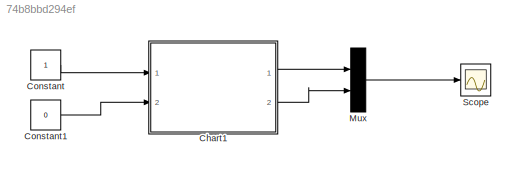
MODEL slx_74b8bbd294ef
KIND model
CONFIG AbsTol = auto
CONFIG EnableMultiTasking = off
CONFIG FixedStep = auto
CONFIG MaxStep = auto
CONFIG MinStep = auto
CONFIG RelTol = 1e-3
CONFIG SampleTimeConstraint = Unconstrained
CONFIG Solver = VariableStepAuto
CONFIG SolverName = VariableStepAuto
CONFIG StartTime = 0.0
CONFIG StopTime = 10.0
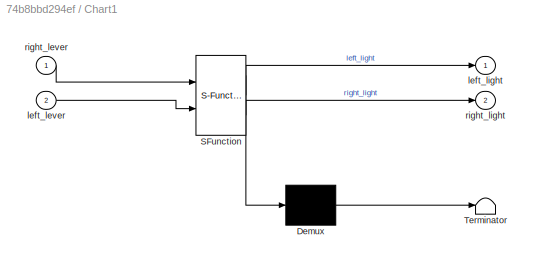
BLOCK [SubSystem] Chart1
  ErrorFcn = Stateflow.Translate.translate
  PermitHierarchicalResolution = ExplicitOnly
  Ports = [2, 2]
  RequestExecContextInheritance = off
  SFBlockType = Chart
  TreatAsAtomicUnit = on
BLOCK [Demux] Chart1/ Demux 
  Outputs = 1
  Ports = [1, 1]
BLOCK [S-Function] Chart1/ SFunction 
  EnableBusSupport = on
  FunctionName = sf_sfun
  PortCounts = [2 3]
  Ports = [2, 3]
  SFcnIsStateOwnerBlock = off
  SFunctionDeploymentMode = off
  Tag = Stateflow S-Function 1
BLOCK [Terminator] Chart1/ Terminator 
BLOCK [Inport] Chart1/left_lever
  Port = 2
BLOCK [Outport] Chart1/left_light
BLOCK [Inport] Chart1/right_lever
BLOCK [Outport] Chart1/right_light
  Port = 2
BLOCK [Constant] Constant
BLOCK [Constant] Constant1
  Value = 0
BLOCK [Mux] Mux
  DisplayOption = bar
  Inputs = 2
  Ports = [2, 1]
BLOCK [Scope] Scope
  Floating = off
  NumInputPorts = 1
  Ports = [1]
  ScopeSpecificationString = Simulink.scopes.TimeScopeBlockCfg('CurrentConfiguration', extmgr.ConfigurationSet(extmgr.Configuration('Core','General UI',true),extmgr.Configuration('Core','Source UI',true),extmgr.Configuration('Sources','WiredSimulink',true),extmgr.Configuration('Visuals','Time Domain',true,'SerializedDisplays',{struct('MinYLimReal','-0.125','MaxYLimReal','1.125','YLabelReal','','MinYLimMag','0.00000','MaxYLimM...<+1375ch>
LINE Chart1:1 -> Mux:1
LINE Chart1:2 -> Mux:2
LINE Constant1:1 -> Chart1:2
LINE Constant:1 -> Chart1:1
LINE Mux:1 -> Scope:1
CHART Chart1 states=7 transitions=11
  STATE_LABEL 'OFF\nentry:\nleft_light = 0;\nright_light = 0;'
  STATE_LABEL 'LEFT'
  STATE_LABEL 'ON\nentry:\nleft_light=1;'
  STATE_LABEL 'OFF\nentry:\nleft_light=0;'
  STATE_LABEL 'after(0.5,sec)'
  STATE_LABEL 'after(0.5,sec)'
  STATE_LABEL 'ON\nentry:\nleft_light=1;'
  STATE_LABEL 'OFF\nentry:\nleft_light=0;'
  STATE_LABEL 'RIGHT'
  STATE_LABEL 'ON\nentry:\nright_light=1;'
  STATE_LABEL 'OFF\nentry:\nright_light=0;'
  STATE_LABEL 'after(0.5,sec)'
  STATE_LABEL 'after(0.5,sec)'
  STATE_LABEL 'ON\nentry:\nright_light=1;'
  STATE_LABEL 'OFF\nentry:\nright_light=0;'
CHART  states=0 transitions=0
